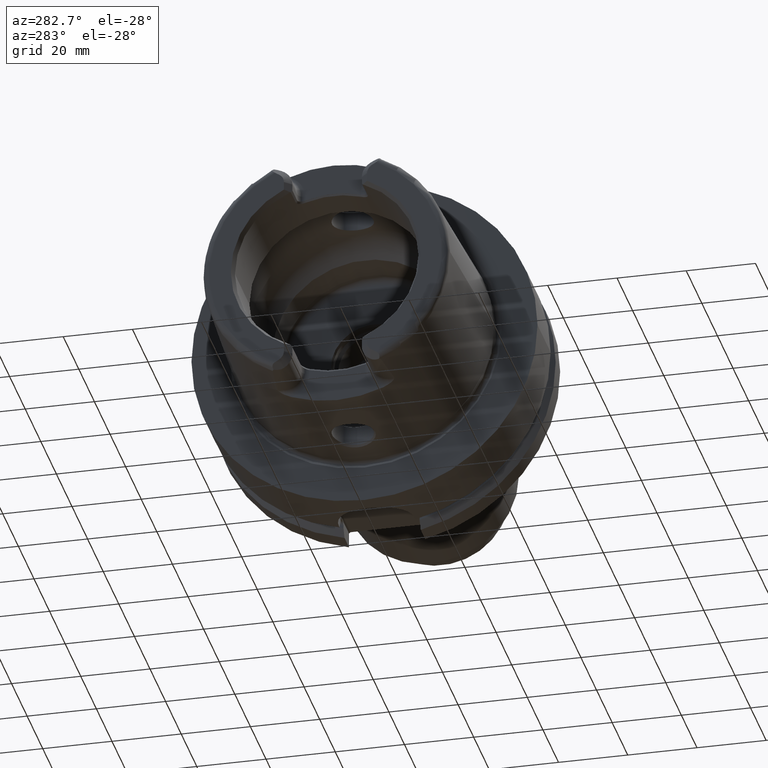
[diagram: clean part render]
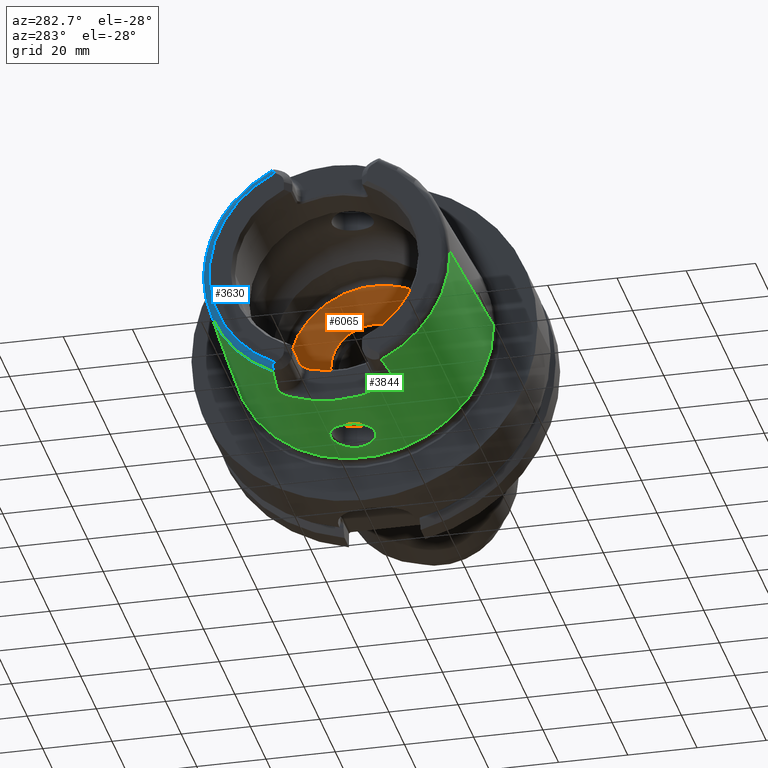
[diagram: same view with three faces highlighted in distinct colors, each labeled with its STEP entity id]
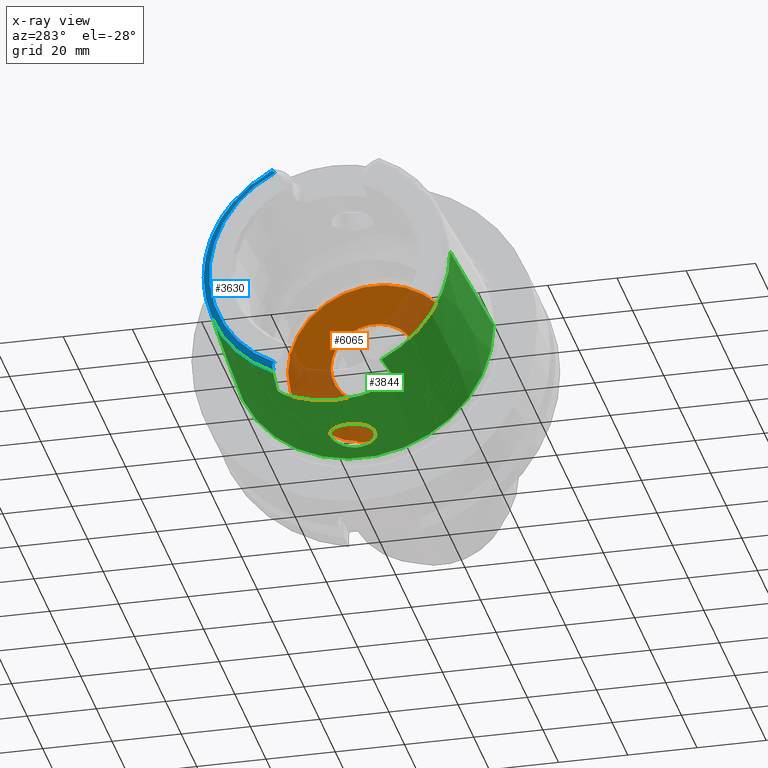
[diagram: x-ray of the same camera — body ghosted, the three highlighted faces saturated]
A machine part, auxiliary view with three faces highlighted in distinct colors.
The next image is the same camera in x-ray (body ghosted, the three faces saturated) — at least one of them is partly hidden behind the body in this view.
Their STEP definitions:

[orange] entity #6065 — the highlighted planar face has unit normal (1, 0, 0).
#2418=CARTESIAN_POINT('',(1.25E1,0.E0,0.E0));
#2419=DIRECTION('',(1.E0,0.E0,0.E0));
#2420=DIRECTION('',(0.E0,1.E0,0.E0));
#2421=AXIS2_PLACEMENT_3D('',#2418,#2419,#2420);
#2428=CARTESIAN_POINT('',(1.25E1,0.E0,0.E0));
#2429=DIRECTION('',(-1.E0,0.E0,0.E0));
#2430=DIRECTION('',(0.E0,1.E0,0.E0));
#2431=AXIS2_PLACEMENT_3D('',#2428,#2429,#2430);
#2438=CARTESIAN_POINT('',(1.25E1,0.E0,0.E0));
#2439=DIRECTION('',(1.E0,0.E0,0.E0));
#2440=DIRECTION('',(0.E0,-1.E0,0.E0));
#2441=AXIS2_PLACEMENT_3D('',#2438,#2439,#2440);
#2443=CARTESIAN_POINT('',(1.25E1,0.E0,0.E0));
#2444=DIRECTION('',(1.E0,0.E0,0.E0));
#2445=DIRECTION('',(0.E0,1.E0,0.E0));
#2446=AXIS2_PLACEMENT_3D('',#2443,#2444,#2445);
#2883=CARTESIAN_POINT('',(1.25E1,2.49E1,0.E0));
#2885=VERTEX_POINT('',#2883);
#2887=CARTESIAN_POINT('',(1.25E1,-2.49E1,0.E0));
#2889=VERTEX_POINT('',#2887);
#3271=CARTESIAN_POINT('',(1.25E1,-1.25665E1,0.E0));
#3272=CARTESIAN_POINT('',(1.25E1,1.25665E1,0.E0));
#3273=VERTEX_POINT('',#3271);
#3274=VERTEX_POINT('',#3272);
#6050=CARTESIAN_POINT('',(1.25E1,0.E0,0.E0));
#6051=DIRECTION('',(1.E0,0.E0,0.E0));
#6052=DIRECTION('',(0.E0,-1.E0,0.E0));
#6053=AXIS2_PLACEMENT_3D('',#6050,#6051,#6052);
#6054=PLANE('',#6053);
#6055=ORIENTED_EDGE('',*,*,#6032,.T.);
#6056=ORIENTED_EDGE('',*,*,#6043,.F.);
#6057=EDGE_LOOP('',(#6055,#6056));
#6058=FACE_OUTER_BOUND('',#6057,.F.);
#6060=ORIENTED_EDGE('',*,*,#6059,.F.);
#6062=ORIENTED_EDGE('',*,*,#6061,.F.);
#6063=EDGE_LOOP('',(#6060,#6062));
#6064=FACE_BOUND('',#6063,.F.);
#6065=ADVANCED_FACE('',(#6058,#6064),#6054,.F.);
#2422=CIRCLE('',#2421,2.49E1);
#2432=CIRCLE('',#2431,2.49E1);
#2442=CIRCLE('',#2441,1.25665E1);
#2447=CIRCLE('',#2446,1.25665E1);
#6032=EDGE_CURVE('',#2885,#2889,#2422,.T.);
#6043=EDGE_CURVE('',#2885,#2889,#2432,.T.);
#6059=EDGE_CURVE('',#3273,#3274,#2442,.T.);
#6061=EDGE_CURVE('',#3274,#3273,#2447,.T.);

[blue] entity #3630 — the highlighted toroidal blend (fillet) surface has major radius 33.6002 mm and minor (blend) radius 2 mm.
#284=CARTESIAN_POINT('',(-4.885415732441E1,1.524233599545E1,-3.196E1));
#285=CARTESIAN_POINT('',(-4.892042682917E1,1.528184575722E1,-3.190647917074E1));
#286=CARTESIAN_POINT('',(-4.904907337055E1,1.534921107261E1,-3.179688001462E1));
#287=CARTESIAN_POINT('',(-4.923089295558E1,1.541590864687E1,-3.162456500561E1));
#288=CARTESIAN_POINT('',(-4.939996141290E1,1.544678596655E1,-3.144531182725E1));
#289=CARTESIAN_POINT('',(-4.955291678113E1,1.544062482823E1,-3.126231590503E1));
#290=CARTESIAN_POINT('',(-4.968961398491E1,1.539492909283E1,-3.107422253444E1));
#291=CARTESIAN_POINT('',(-4.980222556701E1,1.531137807264E1,-3.089122966690E1));
#292=CARTESIAN_POINT('',(-4.98920182E1,1.518913217588E1,-3.071134017670E1));
#293=CARTESIAN_POINT('',(-4.995490319930E1,1.503380242251E1,-3.054277251898E1));
#294=CARTESIAN_POINT('',(-4.999193874033E1,1.484926520259E1,-3.038665452223E1));
#295=CARTESIAN_POINT('',(-5.E1,1.470886141623E1,-3.029144627288E1));
#296=CARTESIAN_POINT('',(-5.E1,1.463423248617E1,-3.024586108239E1));
#298=CARTESIAN_POINT('',(-4.810007448473E1,1.567653238626E1,-3.196E1));
#299=CARTESIAN_POINT('',(-4.814854926161E1,1.567101764283E1,-3.196E1));
#300=CARTESIAN_POINT('',(-4.824699718528E1,1.565188578280E1,-3.196E1));
#301=CARTESIAN_POINT('',(-4.840101233225E1,1.559467216883E1,-3.196E1));
#302=CARTESIAN_POINT('',(-4.855439166438E1,1.550852477714E1,-3.196E1));
#303=CARTESIAN_POINT('',(-4.870516089830E1,1.539385143023E1,-3.196E1));
#304=CARTESIAN_POINT('',(-4.880487439669E1,1.529641023181E1,-3.196E1));
#305=CARTESIAN_POINT('',(-4.885415732441E1,1.524233599545E1,-3.196E1));
#307=CARTESIAN_POINT('',(-4.810007448473E1,0.E0,0.E0));
#308=DIRECTION('',(-1.E0,0.E0,0.E0));
#309=DIRECTION('',(0.E0,1.E0,0.E0));
#310=AXIS2_PLACEMENT_3D('',#307,#308,#309);
#312=CARTESIAN_POINT('',(-4.810007448473E1,0.E0,0.E0));
#313=DIRECTION('',(1.E0,0.E0,0.E0));
#314=DIRECTION('',(0.E0,1.E0,0.E0));
#315=AXIS2_PLACEMENT_3D('',#312,#313,#314);
#317=CARTESIAN_POINT('',(-4.885415732441E1,1.524233599545E1,3.196E1));
#318=CARTESIAN_POINT('',(-4.880489671373E1,1.529638574510E1,3.196E1));
#319=CARTESIAN_POINT('',(-4.870522589790E1,1.539380534287E1,3.196E1));
#320=CARTESIAN_POINT('',(-4.855425205604E1,1.550861743949E1,3.196E1));
#321=CARTESIAN_POINT('',(-4.840102922174E1,1.559466231398E1,3.196E1));
#322=CARTESIAN_POINT('',(-4.824685927015E1,1.565193052527E1,3.196E1));
#323=CARTESIAN_POINT('',(-4.814849310230E1,1.567102403180E1,3.196E1));
#324=CARTESIAN_POINT('',(-4.810007448473E1,1.567653238626E1,3.196E1));
#326=CARTESIAN_POINT('',(-5.E1,1.463423248617E1,3.024586108239E1));
#327=CARTESIAN_POINT('',(-5.E1,1.470887052533E1,3.029145183695E1));
#328=CARTESIAN_POINT('',(-4.999193668301E1,1.484929336697E1,3.038667413649E1));
#329=CARTESIAN_POINT('',(-4.995488930905E1,1.503385996795E1,3.054282394569E1));
#330=CARTESIAN_POINT('',(-4.989197500232E1,1.518921649175E1,3.071144229779E1));
#331=CARTESIAN_POINT('',(-4.980215470263E1,1.531145218524E1,3.089135797532E1));
#332=CARTESIAN_POINT('',(-4.968951481558E1,1.539498007461E1,3.107436988164E1));
#333=CARTESIAN_POINT('',(-4.955280820452E1,1.544064650585E1,3.126245637594E1));
#334=CARTESIAN_POINT('',(-4.939976008409E1,1.544677878772E1,3.144554335861E1));
#335=CARTESIAN_POINT('',(-4.923056226109E1,1.541582067272E1,3.162489877544E1));
#336=CARTESIAN_POINT('',(-4.904873698401E1,1.534905210810E1,3.179717709171E1));
#337=CARTESIAN_POINT('',(-4.892028850269E1,1.528176328722E1,3.190659088650E1));
#338=CARTESIAN_POINT('',(-4.885415732441E1,1.524233599545E1,3.196E1));
#340=CARTESIAN_POINT('',(-5.E1,0.E0,0.E0));
#341=DIRECTION('',(-1.E0,0.E0,0.E0));
#342=DIRECTION('',(0.E0,4.355401503799E-1,9.001693048572E-1));
#343=AXIS2_PLACEMENT_3D('',#340,#341,#342);
#2875=CARTESIAN_POINT('',(-4.810007448473E1,3.559768626831E1,0.E0));
#2876=VERTEX_POINT('',#2875);
#2915=CARTESIAN_POINT('',(-4.810007448473E1,1.567653238626E1,3.196E1));
#2916=VERTEX_POINT('',#2915);
#2947=CARTESIAN_POINT('',(-5.E1,1.463423248617E1,3.024586108239E1));
#2948=VERTEX_POINT('',#2947);
#2949=VERTEX_POINT('',#338);
#2995=CARTESIAN_POINT('',(-4.810007448473E1,1.567653238626E1,-3.196E1));
#2996=VERTEX_POINT('',#2995);
#3038=CARTESIAN_POINT('',(-5.E1,1.463423248617E1,-3.024586108239E1));
#3039=VERTEX_POINT('',#3038);
#3040=VERTEX_POINT('',#284);
#3612=CARTESIAN_POINT('',(-4.8E1,0.E0,0.E0));
#3613=DIRECTION('',(1.E0,0.E0,0.E0));
#3614=DIRECTION('',(0.E0,-1.E0,0.E0));
#3615=AXIS2_PLACEMENT_3D('',#3612,#3613,#3614);
#3616=TOROIDAL_SURFACE('',#3615,3.360019156306E1,2.E0);
#3618=ORIENTED_EDGE('',*,*,#3617,.F.);
#3620=ORIENTED_EDGE('',*,*,#3619,.F.);
#3622=ORIENTED_EDGE('',*,*,#3621,.F.);
#3623=ORIENTED_EDGE('',*,*,#3338,.T.);
#3625=ORIENTED_EDGE('',*,*,#3624,.F.);
#3626=ORIENTED_EDGE('',*,*,#3603,.F.);
#3627=ORIENTED_EDGE('',*,*,#3402,.T.);
#3628=EDGE_LOOP('',(#3618,#3620,#3622,#3623,#3625,#3626,#3627));
#3629=FACE_OUTER_BOUND('',#3628,.F.);
#3630=ADVANCED_FACE('',(#3629),#3616,.T.);
#297=B_SPLINE_CURVE_WITH_KNOTS('',3,(#284,#285,#286,#287,#288,#289,#290,#291,
#292,#293,#294,#295,#296),.UNSPECIFIED.,.F.,.F.,(4,1,1,1,1,1,1,1,1,1,4),(0.E0,
1.E-1,2.E-1,3.E-1,4.E-1,5.E-1,6.E-1,7.E-1,8.E-1,9.E-1,1.E0),.UNSPECIFIED.);
#306=B_SPLINE_CURVE_WITH_KNOTS('',3,(#298,#299,#300,#301,#302,#303,#304,#305),
.UNSPECIFIED.,.F.,.F.,(4,1,1,1,1,4),(0.E0,2.E-1,4.E-1,6.E-1,8.E-1,1.E0),
.UNSPECIFIED.);
#311=CIRCLE('',#310,3.559768626831E1);
#316=CIRCLE('',#315,3.559768626831E1);
#325=B_SPLINE_CURVE_WITH_KNOTS('',3,(#317,#318,#319,#320,#321,#322,#323,#324),
.UNSPECIFIED.,.F.,.F.,(4,1,1,1,1,4),(0.E0,2.E-1,4.E-1,6.E-1,8.E-1,1.E0),
.UNSPECIFIED.);
#339=B_SPLINE_CURVE_WITH_KNOTS('',3,(#326,#327,#328,#329,#330,#331,#332,#333,
#334,#335,#336,#337,#338),.UNSPECIFIED.,.F.,.F.,(4,1,1,1,1,1,1,1,1,1,4),(0.E0,
1.E-1,2.E-1,3.E-1,4.E-1,5.E-1,6.E-1,7.E-1,8.E-1,9.E-1,1.E0),.UNSPECIFIED.);
#344=CIRCLE('',#343,3.360019156306E1);
#3338=EDGE_CURVE('',#2876,#2916,#316,.T.);
#3402=EDGE_CURVE('',#2948,#3039,#344,.T.);
#3603=EDGE_CURVE('',#2948,#2949,#339,.T.);
#3617=EDGE_CURVE('',#3040,#3039,#297,.T.);
#3619=EDGE_CURVE('',#2996,#3040,#306,.T.);
#3621=EDGE_CURVE('',#2876,#2996,#311,.T.);
#3624=EDGE_CURVE('',#2949,#2916,#325,.T.);

[green] entity #3844 — the highlighted conical surface has half-angle 2.868 deg.
#307=CARTESIAN_POINT('',(-4.810007448473E1,0.E0,0.E0));
#308=DIRECTION('',(-1.E0,0.E0,0.E0));
#309=DIRECTION('',(0.E0,1.E0,0.E0));
#310=AXIS2_PLACEMENT_3D('',#307,#308,#309);
#392=CARTESIAN_POINT('',(-4.810007448473E1,0.E0,0.E0));
#393=DIRECTION('',(-1.E0,0.E0,0.E0));
#394=DIRECTION('',(0.E0,-4.403806547453E-1,-8.978111599474E-1));
#395=AXIS2_PLACEMENT_3D('',#392,#393,#394);
#542=CARTESIAN_POINT('',(-4.810007448473E1,1.567653238626E1,-3.196E1));
#543=CARTESIAN_POINT('',(-4.691253354608E1,1.581163323682E1,-3.196E1));
#544=CARTESIAN_POINT('',(-4.450693295241E1,1.608249060017E1,-3.196E1));
#545=CARTESIAN_POINT('',(-4.080822205394E1,1.649061651786E1,-3.196E1));
#546=CARTESIAN_POINT('',(-3.827971844003E1,1.676420418060E1,-3.196E1));
#547=CARTESIAN_POINT('',(-3.7E1,1.690135066910E1,-3.196E1));
#549=CARTESIAN_POINT('',(-3.5E1,0.E0,0.E0));
#550=DIRECTION('',(1.E0,0.E0,0.E0));
#551=DIRECTION('',(0.E0,-3.659355944317E-1,-9.306401779033E-1));
#552=AXIS2_PLACEMENT_3D('',#549,#550,#551);
#554=CARTESIAN_POINT('',(-3.7E1,-1.690135066910E1,-3.196E1));
#555=CARTESIAN_POINT('',(-3.827957528302E1,-1.676421952263E1,-3.196E1));
#556=CARTESIAN_POINT('',(-4.080788819039E1,-1.649065289085E1,-3.196E1));
#557=CARTESIAN_POINT('',(-4.450660828452E1,-1.608252688744E1,-3.196E1));
#558=CARTESIAN_POINT('',(-4.691239447940E1,-1.581164905777E1,-3.196E1));
#559=CARTESIAN_POINT('',(-4.810007448473E1,-1.567653238626E1,-3.196E1));
#561=DIRECTION('',(-9.987473526255E-1,5.003724236654E-2,0.E0));
#562=VECTOR('',#561,4.565726694029E1);
#563=CARTESIAN_POINT('',(-2.5E0,-3.788225E1,0.E0));
#564=LINE('',#563,#562);
#565=CARTESIAN_POINT('',(-2.5E0,0.E0,0.E0));
#566=DIRECTION('',(1.E0,0.E0,0.E0));
#567=DIRECTION('',(0.E0,-1.E0,0.E0));
#568=AXIS2_PLACEMENT_3D('',#565,#566,#567);
#570=DIRECTION('',(-9.987473526255E-1,-5.003724236654E-2,0.E0));
#571=VECTOR('',#570,4.565726694029E1);
#572=CARTESIAN_POINT('',(-2.5E0,3.788225E1,0.E0));
#573=LINE('',#572,#571);
#574=CARTESIAN_POINT('',(-8.500618228215E0,-4.475741567310E-11,
-3.758161092103E1));
#575=CARTESIAN_POINT('',(-8.500550626629E0,2.307123186996E-1,
-3.758164609326E1));
#576=CARTESIAN_POINT('',(-8.527361627144E0,7.336655055656E-1,
-3.757562989718E1));
#577=CARTESIAN_POINT('',(-8.658487901890E0,1.501607868725E0,-3.754653658895E1));
#578=CARTESIAN_POINT('',(-8.897257248323E0,2.287068896E0,-3.749470537780E1));
#579=CARTESIAN_POINT('',(-9.233930830616E0,3.038376631295E0,-3.742413833235E1));
#580=CARTESIAN_POINT('',(-9.665180423226E0,3.744542284435E0,-3.733806106411E1));
#581=CARTESIAN_POINT('',(-1.018494007596E1,4.392525906197E0,-3.724079839048E1));
#582=CARTESIAN_POINT('',(-1.078433252086E1,4.969742317677E0,-3.713748237766E1));
#583=CARTESIAN_POINT('',(-1.145295368828E1,5.465719413789E0,-3.703348699097E1));
#584=CARTESIAN_POINT('',(-1.217872434304E1,5.871741506149E0,-3.693411809702E1));
#585=CARTESIAN_POINT('',(-1.294907725396E1,6.181458789403E0,-3.684412609384E1));
#586=CARTESIAN_POINT('',(-1.375077304364E1,6.390383355882E0,-3.676749362246E1));
#587=CARTESIAN_POINT('',(-1.457124723519E1,6.496150992971E0,-3.670710043979E1));
#588=CARTESIAN_POINT('',(-1.539963323060E1,6.497327684605E0,-3.666473599908E1));
#589=CARTESIAN_POINT('',(-1.621811808436E1,6.394337052140E0,-3.664130538745E1));
#590=CARTESIAN_POINT('',(-1.701498565109E1,6.189982543680E0,-3.663607891146E1));
#591=CARTESIAN_POINT('',(-1.778004900083E1,5.887116868581E0,-3.664741303044E1));
#592=CARTESIAN_POINT('',(-1.850137732128E1,5.490146143225E0,-3.667277568766E1));
#593=CARTESIAN_POINT('',(-1.916799834207E1,5.004550368212E0,-3.670886700839E1));
#594=CARTESIAN_POINT('',(-1.976920462201E1,4.437176205297E0,-3.675182754134E1));
#595=CARTESIAN_POINT('',(-2.029477253260E1,3.796411168194E0,-3.679746060413E1));
#596=CARTESIAN_POINT('',(-2.073457092496E1,3.093790391877E0,-3.684142692236E1));
#597=CARTESIAN_POINT('',(-2.108101531841E1,2.341868855664E0,-3.687975533364E1));
#598=CARTESIAN_POINT('',(-2.132907064090E1,1.552529546171E0,-3.690920014808E1));
#599=CARTESIAN_POINT('',(-2.146979802624E1,7.662360037897E-1,
-3.692663777819E1));
#600=CARTESIAN_POINT('',(-2.149947827869E1,2.456572466609E-1,
-3.693041402385E1));
#601=CARTESIAN_POINT('',(-2.149938206728E1,4.252313622681E-11,
-3.693037255683E1));
#603=CARTESIAN_POINT('',(-2.149938206728E1,4.252313622681E-11,
-3.693037255683E1));
#604=CARTESIAN_POINT('',(-2.149945538697E1,-2.340479521171E-1,
-3.693040395485E1));
#605=CARTESIAN_POINT('',(-2.147182734210E1,-7.430736824871E-1,
-3.692689923808E1));
#606=CARTESIAN_POINT('',(-2.133729628437E1,-1.518670363132E0,
-3.691020402111E1));
#607=CARTESIAN_POINT('',(-2.109342961129E1,-2.309431654899E0,
-3.688118929283E1));
#608=CARTESIAN_POINT('',(-2.075099845802E1,-3.063198291705E0,
-3.684317083610E1));
#609=CARTESIAN_POINT('',(-2.031499413642E1,-3.768106404610E0,
-3.679936697460E1));
#610=CARTESIAN_POINT('',(-1.979289029767E1,-4.411650229581E0,
-3.675372219731E1));
#611=CARTESIAN_POINT('',(-1.919463266022E1,-4.982323872691E0,
-3.671056084722E1));
#612=CARTESIAN_POINT('',(-1.853041114464E1,-5.471591578572E0,
-3.667409350441E1));
#613=CARTESIAN_POINT('',(-1.781100487862E1,-5.872448697570E0,
-3.664820853921E1));
#614=CARTESIAN_POINT('',(-1.704753604412E1,-6.179316936003E0,
-3.663623504527E1));
#615=CARTESIAN_POINT('',(-1.625202603452E1,-6.387759294270E0,
-3.664073415043E1));
#616=CARTESIAN_POINT('',(-1.543496245560E1,-6.495024783349E0,
-3.666334839609E1));
#617=CARTESIAN_POINT('',(-1.460654750338E1,-6.498344270788E0,
-3.670491373185E1));
#618=CARTESIAN_POINT('',(-1.378596486485E1,-6.397082641248E0,
-3.676453213359E1));
#619=CARTESIAN_POINT('',(-1.298349373108E1,-6.192696568201E0,
-3.684047961027E1));
#620=CARTESIAN_POINT('',(-1.221144146647E1,-5.887281631963E0,
-3.692997057387E1));
#621=CARTESIAN_POINT('',(-1.148337668307E1,-5.485279169694E0,
-3.702903815359E1));
#622=CARTESIAN_POINT('',(-1.081197580096E1,-4.993009521795E0,
-3.713294698881E1));
#623=CARTESIAN_POINT('',(-1.020932849949E1,-4.419085304323E0,
-3.723640914420E1));
#624=CARTESIAN_POINT('',(-9.685901962872E0,-3.773893108114E0,
-3.733404753344E1));
#625=CARTESIAN_POINT('',(-9.250671307496E0,-3.069967665821E0,
-3.742070642908E1));
#626=CARTESIAN_POINT('',(-8.909811119218E0,-2.320344961222E0,
-3.749202098184E1));
#627=CARTESIAN_POINT('',(-8.666742386503E0,-1.536111417479E0,
-3.754472100539E1));
#628=CARTESIAN_POINT('',(-8.529385927200E0,-7.571760095601E-1,
-3.757517178087E1));
#629=CARTESIAN_POINT('',(-8.500529445925E0,-2.424682905367E-1,
-3.758165757513E1));
#630=CARTESIAN_POINT('',(-8.500618228215E0,-4.475741567310E-11,
-3.758161092103E1));
#644=CARTESIAN_POINT('',(-3.525270277560E1,1.501E1,-3.298688520224E1));
#645=CARTESIAN_POINT('',(-3.528534211849E1,1.513484846724E1,-3.292827892747E1));
#646=CARTESIAN_POINT('',(-3.535659114497E1,1.537361797185E1,-3.281400095423E1));
#647=CARTESIAN_POINT('',(-3.548419296966E1,1.570424630972E1,-3.264982183345E1));
#648=CARTESIAN_POINT('',(-3.562487069608E1,1.598931575733E1,-3.250314611781E1));
#649=CARTESIAN_POINT('',(-3.577616803803E1,1.623191524099E1,-3.237407229234E1));
#650=CARTESIAN_POINT('',(-3.593586343865E1,1.643375355599E1,-3.226300002168E1));
#651=CARTESIAN_POINT('',(-3.610247622728E1,1.659835163566E1,-3.216916661381E1));
#652=CARTESIAN_POINT('',(-3.628387335068E1,1.673284687743E1,-3.208910564772E1));
#653=CARTESIAN_POINT('',(-3.646929278561E1,1.682849462631E1,-3.202850145999E1));
#654=CARTESIAN_POINT('',(-3.665268151350E1,1.688632035229E1,-3.198763365132E1));
#655=CARTESIAN_POINT('',(-3.682605028784E1,1.691041315903E1,-3.196506559814E1));
#656=CARTESIAN_POINT('',(-3.694247506704E1,1.690751557406E1,-3.196E1));
#657=CARTESIAN_POINT('',(-3.7E1,1.690135066910E1,-3.196E1));
#659=CARTESIAN_POINT('',(-3.5E1,1.326662904053E1,-3.373942900971E1));
#660=CARTESIAN_POINT('',(-3.5E1,1.343868538316E1,-3.367177499958E1));
#661=CARTESIAN_POINT('',(-3.501772820886E1,1.379762114623E1,-3.352663792870E1));
#662=CARTESIAN_POINT('',(-3.510106181354E1,1.437663105579E1,-3.327825241176E1));
#663=CARTESIAN_POINT('',(-3.519623214612E1,1.479399468517E1,-3.308828225672E1));
#664=CARTESIAN_POINT('',(-3.525270277560E1,1.501E1,-3.298688520224E1));
#794=CARTESIAN_POINT('',(-3.525270277560E1,-1.501E1,-3.298688520224E1));
#795=CARTESIAN_POINT('',(-3.519623503110E1,-1.479400572048E1,
-3.308827707653E1));
#796=CARTESIAN_POINT('',(-3.510106651291E1,-1.437665722375E1,
-3.327824091962E1));
#797=CARTESIAN_POINT('',(-3.501772741615E1,-1.379761960865E1,
-3.352663874321E1));
#798=CARTESIAN_POINT('',(-3.5E1,-1.343868456055E1,-3.367177532304E1));
#799=CARTESIAN_POINT('',(-3.5E1,-1.326662904053E1,-3.373942900971E1));
#806=CARTESIAN_POINT('',(-3.7E1,-1.690135066910E1,-3.196E1));
#807=CARTESIAN_POINT('',(-3.694105098899E1,-1.690766819146E1,-3.196E1));
#808=CARTESIAN_POINT('',(-3.682165804795E1,-1.691069512865E1,
-3.196516571864E1));
#809=CARTESIAN_POINT('',(-3.663738639512E1,-1.688312526699E1,
-3.199018906640E1));
#810=CARTESIAN_POINT('',(-3.645510025775E1,-1.682223827784E1,
-3.203259314290E1));
#811=CARTESIAN_POINT('',(-3.627410510575E1,-1.672636778758E1,
-3.209303313888E1));
#812=CARTESIAN_POINT('',(-3.609632853779E1,-1.659293907050E1,
-3.217230584166E1));
#813=CARTESIAN_POINT('',(-3.592925092948E1,-1.642640915267E1,
-3.226711747878E1));
#814=CARTESIAN_POINT('',(-3.576988123363E1,-1.622286102910E1,
-3.237896532757E1));
#815=CARTESIAN_POINT('',(-3.561995095366E1,-1.598020953691E1,
-3.250789603110E1));
#816=CARTESIAN_POINT('',(-3.548248183207E1,-1.569950921203E1,
-3.265215582464E1));
#817=CARTESIAN_POINT('',(-3.535882357255E1,-1.537978468576E1,
-3.281096523600E1));
#818=CARTESIAN_POINT('',(-3.528614819240E1,-1.513793177358E1,
-3.292683156410E1));
#819=CARTESIAN_POINT('',(-3.525270277560E1,-1.501E1,-3.298688520224E1));
#2871=CARTESIAN_POINT('',(-2.5E0,3.788225E1,0.E0));
#2872=CARTESIAN_POINT('',(-2.5E0,-3.788225E1,0.E0));
#2873=VERTEX_POINT('',#2871);
#2874=VERTEX_POINT('',#2872);
#2875=CARTESIAN_POINT('',(-4.810007448473E1,3.559768626831E1,0.E0));
#2876=VERTEX_POINT('',#2875);
#2877=CARTESIAN_POINT('',(-4.810007448473E1,-3.559768626831E1,0.E0));
#2878=VERTEX_POINT('',#2877);
#2995=CARTESIAN_POINT('',(-4.810007448473E1,1.567653238626E1,-3.196E1));
#2996=VERTEX_POINT('',#2995);
#2997=CARTESIAN_POINT('',(-4.810007448473E1,-1.567653238626E1,-3.196E1));
#2998=VERTEX_POINT('',#2997);
#3000=CARTESIAN_POINT('',(-3.525270277560E1,-1.501E1,-3.298688520224E1));
#3002=VERTEX_POINT('',#3000);
#3003=VERTEX_POINT('',#799);
#3004=VERTEX_POINT('',#659);
#3005=VERTEX_POINT('',#664);
#3016=CARTESIAN_POINT('',(-3.7E1,-1.690135066910E1,-3.196E1));
#3017=VERTEX_POINT('',#3016);
#3018=CARTESIAN_POINT('',(-3.7E1,1.690135066910E1,-3.196E1));
#3019=VERTEX_POINT('',#3018);
#3084=VERTEX_POINT('',#574);
#3085=VERTEX_POINT('',#601);
#3812=CARTESIAN_POINT('',(-2.530003724237E1,0.E0,0.E0));
#3813=DIRECTION('',(1.E0,0.E0,0.E0));
#3814=DIRECTION('',(0.E0,-1.E0,0.E0));
#3815=AXIS2_PLACEMENT_3D('',#3812,#3813,#3814);
#3816=CONICAL_SURFACE('',#3815,3.673996813416E1,2.868120487315E0);
#3818=ORIENTED_EDGE('',*,*,#3817,.T.);
#3820=ORIENTED_EDGE('',*,*,#3819,.F.);
#3822=ORIENTED_EDGE('',*,*,#3821,.F.);
#3824=ORIENTED_EDGE('',*,*,#3823,.F.);
#3826=ORIENTED_EDGE('',*,*,#3825,.F.);
#3828=ORIENTED_EDGE('',*,*,#3827,.F.);
#3829=ORIENTED_EDGE('',*,*,#3803,.T.);
#3830=ORIENTED_EDGE('',*,*,#3642,.T.);
#3831=ORIENTED_EDGE('',*,*,#3344,.F.);
#3833=ORIENTED_EDGE('',*,*,#3832,.T.);
#3834=ORIENTED_EDGE('',*,*,#3340,.T.);
#3835=ORIENTED_EDGE('',*,*,#3621,.T.);
#3836=EDGE_LOOP('',(#3818,#3820,#3822,#3824,#3826,#3828,#3829,#3830,#3831,#3833,
#3834,#3835));
#3837=FACE_OUTER_BOUND('',#3836,.F.);
#3839=ORIENTED_EDGE('',*,*,#3838,.F.);
#3841=ORIENTED_EDGE('',*,*,#3840,.F.);
#3842=EDGE_LOOP('',(#3839,#3841));
#3843=FACE_BOUND('',#3842,.F.);
#3844=ADVANCED_FACE('',(#3837,#3843),#3816,.T.);
#311=CIRCLE('',#310,3.559768626831E1);
#396=CIRCLE('',#395,3.559768626831E1);
#548=B_SPLINE_CURVE_WITH_KNOTS('',3,(#542,#543,#544,#545,#546,#547),
.UNSPECIFIED.,.F.,.F.,(4,1,1,4),(0.E0,3.333333333333E-1,6.666666666667E-1,1.E0),
.UNSPECIFIED.);
#553=CIRCLE('',#552,3.6254E1);
#560=B_SPLINE_CURVE_WITH_KNOTS('',3,(#554,#555,#556,#557,#558,#559),
.UNSPECIFIED.,.F.,.F.,(4,1,1,4),(0.E0,3.333333333333E-1,6.666666666667E-1,1.E0),
.UNSPECIFIED.);
#569=CIRCLE('',#568,3.788225E1);
#602=B_SPLINE_CURVE_WITH_KNOTS('',3,(#574,#575,#576,#577,#578,#579,#580,#581,
#582,#583,#584,#585,#586,#587,#588,#589,#590,#591,#592,#593,#594,#595,#596,#597,
#598,#599,#600,#601),.UNSPECIFIED.,.F.,.F.,(4,1,1,1,1,1,1,1,1,1,1,1,1,1,1,1,1,1,
1,1,1,1,1,1,1,4),(0.E0,3.441266963499E-2,7.481788366542E-2,1.152230976959E-1,
1.556283117263E-1,1.960335257567E-1,2.364387397872E-1,2.768439538176E-1,
3.172491678480E-1,3.576543818785E-1,3.980595959089E-1,4.384648099393E-1,
4.788700239698E-1,5.192752380002E-1,5.596804520306E-1,6.000856660611E-1,
6.404908800915E-1,6.808960941219E-1,7.213013081524E-1,7.617065221828E-1,
8.021117362132E-1,8.425169502437E-1,8.829221642741E-1,9.233273783045E-1,
9.637325923350E-1,1.E0),.UNSPECIFIED.);
#631=B_SPLINE_CURVE_WITH_KNOTS('',3,(#603,#604,#605,#606,#607,#608,#609,#610,
#611,#612,#613,#614,#615,#616,#617,#618,#619,#620,#621,#622,#623,#624,#625,#626,
#627,#628,#629,#630),.UNSPECIFIED.,.F.,.F.,(4,1,1,1,1,1,1,1,1,1,1,1,1,1,1,1,1,1,
1,1,1,1,1,1,1,4),(0.E0,3.452929677679E-2,7.493307390290E-2,1.153368510290E-1,
1.557406281551E-1,1.961444052812E-1,2.365481824073E-1,2.769519595334E-1,
3.173557366596E-1,3.577595137857E-1,3.981632909118E-1,4.385670680379E-1,
4.789708451640E-1,5.193746222901E-1,5.597783994162E-1,6.001821765423E-1,
6.405859536684E-1,6.809897307945E-1,7.213935079206E-1,7.617972850467E-1,
8.022010621729E-1,8.426048392990E-1,8.830086164251E-1,9.234123935512E-1,
9.638161706773E-1,1.E0),.UNSPECIFIED.);
#658=B_SPLINE_CURVE_WITH_KNOTS('',3,(#644,#645,#646,#647,#648,#649,#650,#651,
#652,#653,#654,#655,#656,#657),.UNSPECIFIED.,.F.,.F.,(4,1,1,1,1,1,1,1,1,1,1,4),(
0.E0,9.090909090909E-2,1.818181818182E-1,2.727272727273E-1,3.636363636364E-1,
4.545454545455E-1,5.454545454545E-1,6.363636363636E-1,7.272727272727E-1,
8.181818181818E-1,9.090909090909E-1,1.E0),.UNSPECIFIED.);
#665=B_SPLINE_CURVE_WITH_KNOTS('',3,(#659,#660,#661,#662,#663,#664),
.UNSPECIFIED.,.F.,.F.,(4,1,1,4),(0.E0,3.333333333333E-1,6.666666666667E-1,1.E0),
.UNSPECIFIED.);
#800=B_SPLINE_CURVE_WITH_KNOTS('',3,(#794,#795,#796,#797,#798,#799),
.UNSPECIFIED.,.F.,.F.,(4,1,1,4),(0.E0,3.333333333333E-1,6.666666666667E-1,1.E0),
.UNSPECIFIED.);
#820=B_SPLINE_CURVE_WITH_KNOTS('',3,(#806,#807,#808,#809,#810,#811,#812,#813,
#814,#815,#816,#817,#818,#819),.UNSPECIFIED.,.F.,.F.,(4,1,1,1,1,1,1,1,1,1,1,4),(
0.E0,9.090909090909E-2,1.818181818182E-1,2.727272727273E-1,3.636363636364E-1,
4.545454545455E-1,5.454545454545E-1,6.363636363636E-1,7.272727272727E-1,
8.181818181818E-1,9.090909090909E-1,1.E0),.UNSPECIFIED.);
#3340=EDGE_CURVE('',#2873,#2876,#573,.T.);
#3344=EDGE_CURVE('',#2874,#2878,#564,.T.);
#3621=EDGE_CURVE('',#2876,#2996,#311,.T.);
#3642=EDGE_CURVE('',#2998,#2878,#396,.T.);
#3803=EDGE_CURVE('',#3017,#2998,#560,.T.);
#3817=EDGE_CURVE('',#2996,#3019,#548,.T.);
#3819=EDGE_CURVE('',#3005,#3019,#658,.T.);
#3821=EDGE_CURVE('',#3004,#3005,#665,.T.);
#3823=EDGE_CURVE('',#3003,#3004,#553,.T.);
#3825=EDGE_CURVE('',#3002,#3003,#800,.T.);
#3827=EDGE_CURVE('',#3017,#3002,#820,.T.);
#3832=EDGE_CURVE('',#2874,#2873,#569,.T.);
#3838=EDGE_CURVE('',#3084,#3085,#602,.T.);
#3840=EDGE_CURVE('',#3085,#3084,#631,.T.);